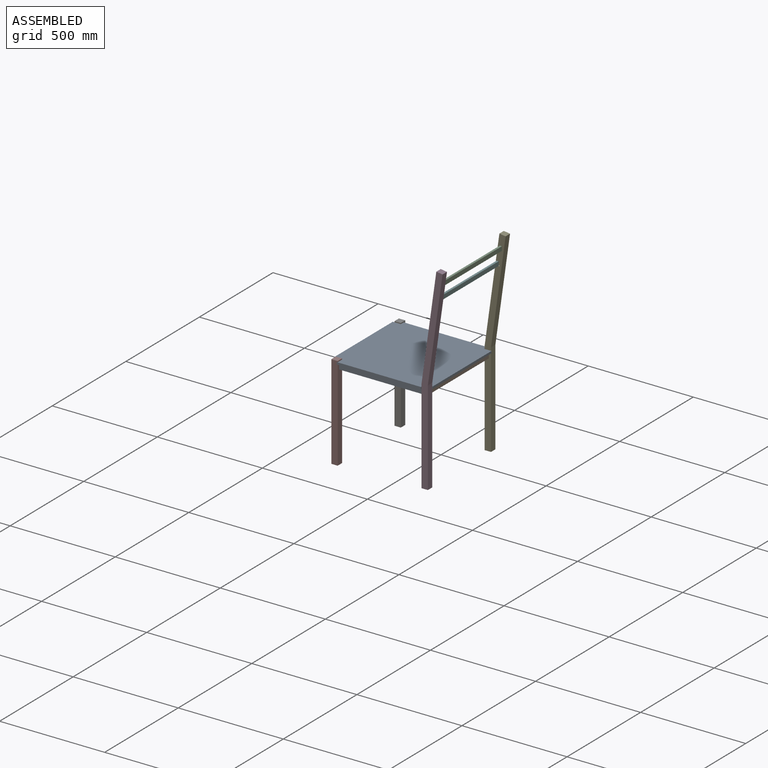
[diagram: assembled view]
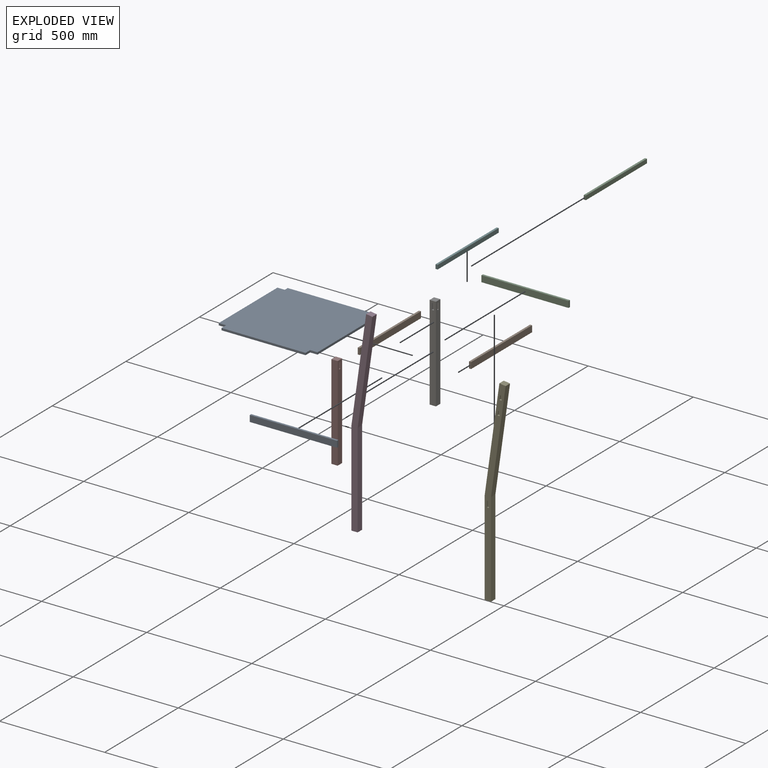
[diagram: exploded view]
GUIDED TOUR — MATED ASSEMBLY (Onshape document 57f553b5744ea710bc582a94, AutoMate assembly 57f553b5744ea710bc582a94_9892157abdbce8a4e0718a77_82fcf1b029c0564d28d1ed83_default)

This assembly has 11 components, labeled P0..P10 below (a component is one placed occurrence of a part; the same part can appear more than once), held together by 10 mates. A mate is a constraint between two components; its type names the relative motion it leaves free:
  FASTENED — locks the two components together rigidly (no relative motion).
Axis/direction vectors are unit vectors and 'through' points are millimeter coordinates, both in the assembly's world frame.

MATES
  1. FASTENED "Fastened 2": P3 <-> P0, direction (-1.000, 0.000, 0.000) through (437.00, -444.00, 425.00) mm
  2. FASTENED "support face et pied droit": P7 <-> P1, direction (0.000, 1.000, 0.000) through (15.00, -437.00, 425.00) mm
  3. FASTENED "Fastened 5": P5 <-> P4, direction (0.000, 1.000, 0.000) through (490.79, -30.00, 829.87) mm
  4. FASTENED "Fastened 3": P8 <-> P3, direction (0.000, -1.000, 0.000) through (444.00, -429.00, 440.00) mm
  5. FASTENED "le support de la face et le pied gauche": P2 <-> P6, direction (-1.000, 0.000, 0.000) through (22.00, -15.00, 425.00) mm
  6. FASTENED "support droit et pied avant": P0 <-> P7, direction (-1.000, 0.000, 0.000) through (22.00, -444.00, 425.00) mm
  7. FASTENED "support droit et pied arriere": P4 <-> P2, direction (-1.000, 0.000, 0.000) through (437.00, -15.00, 425.00) mm
  8. FASTENED "support gauche et pied avant": P6 <-> P1, direction (0.000, -1.000, 0.000) through (15.00, -22.00, 425.00) mm
  9. FASTENED "support arriere et pied droit": P9 <-> P4, direction (0.000, 1.000, 0.000) through (444.00, -22.00, 425.00) mm
  10. FASTENED "Fastened 4": P10 <-> P3, direction (0.000, -1.000, 0.000) through (505.79, -437.00, 898.49) mm

ASSEMBLY ORDER
  1. P7 — the base component [order verified]
  2. P1 [order verified]
  3. P0 [order verified]
  4. P6 [order verified]
  5. P2 [order verified]
  6. P8 [order verified]
  7. P9 [order verified]
  8. P5 [order verified]
  9. P3 [order verified]
  10. P10 [order verified]
  11. P4 [order verified]
(P0, P1, P2, P6 verified with a relaxed clearance tolerance: the source model stores slight part interference there.)
Order-tag legend:
  [order verified] — this step's position reverses a verified removal order: the component was checked to insert without passing through the ones already placed.

Of the 11 components, 6 carry the full construction recipe — the FeatureScript program that regenerates the part's solid from scratch; the rest are supplied as boundary geometry only.
Each toured component is shown spotlighted twice — in the assembled view, then in the exploded view, where a leader line traces a displaced component back to its assembled socket (saturated green if recipe-attached, orange if geometry-only; every other component desaturated gray) — followed by its recipe or geometry summary and the mates that hold it.
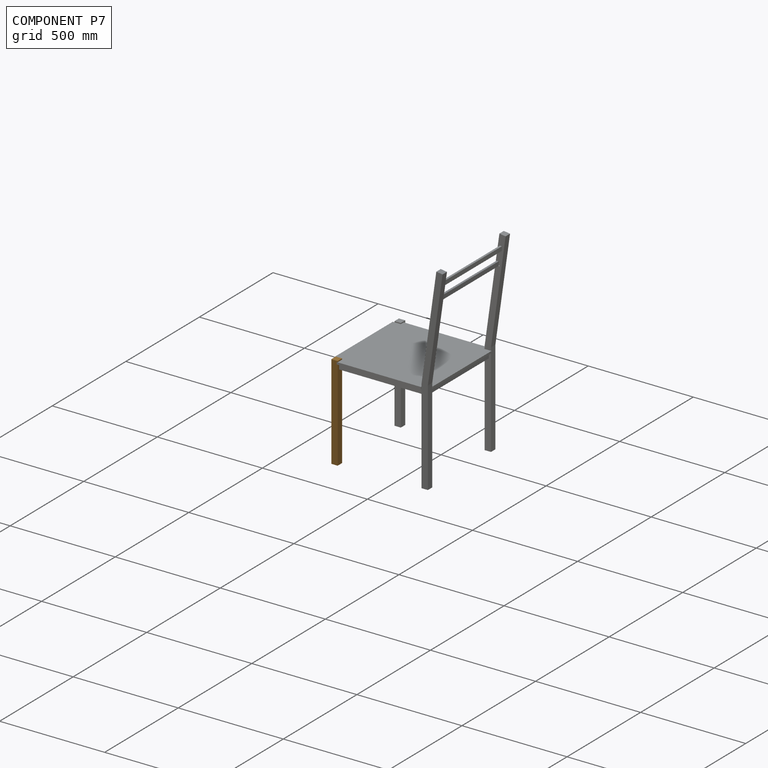
[diagram: component P7 — assembled]
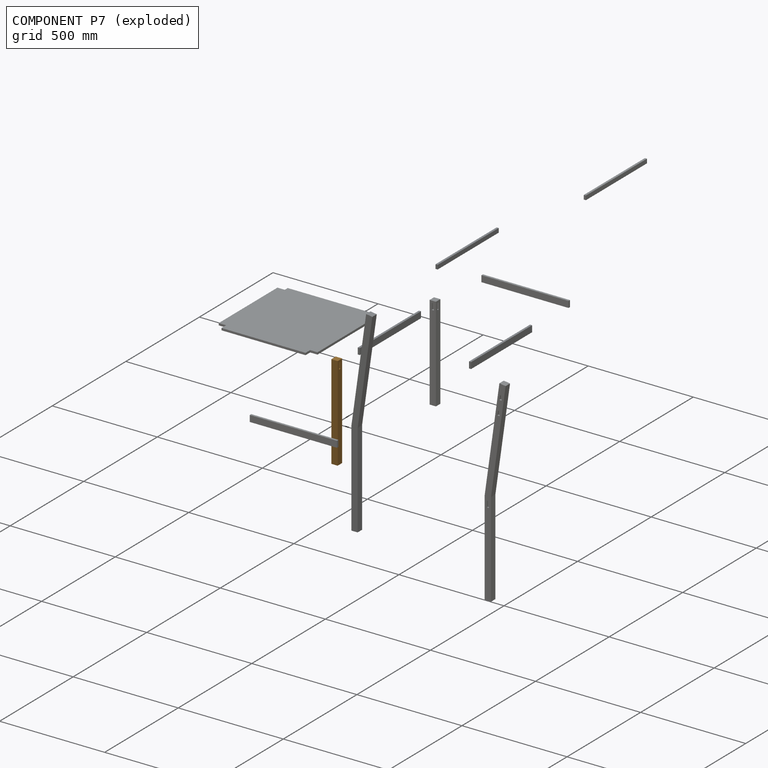
[diagram: component P7 — exploded]
COMPONENT P7 — geometry summary (no construction recipe available for this part):
  bounding box: 450.0 x 30.0 x 30.0 mm
  B-rep topology: 1 solid, 16 faces, 72 edges
  volume: 400200 mm^3 (99% of its bounding box)
Held by: FASTENED mate "support face et pied droit" to P1; FASTENED mate "support droit et pied avant" to P0.
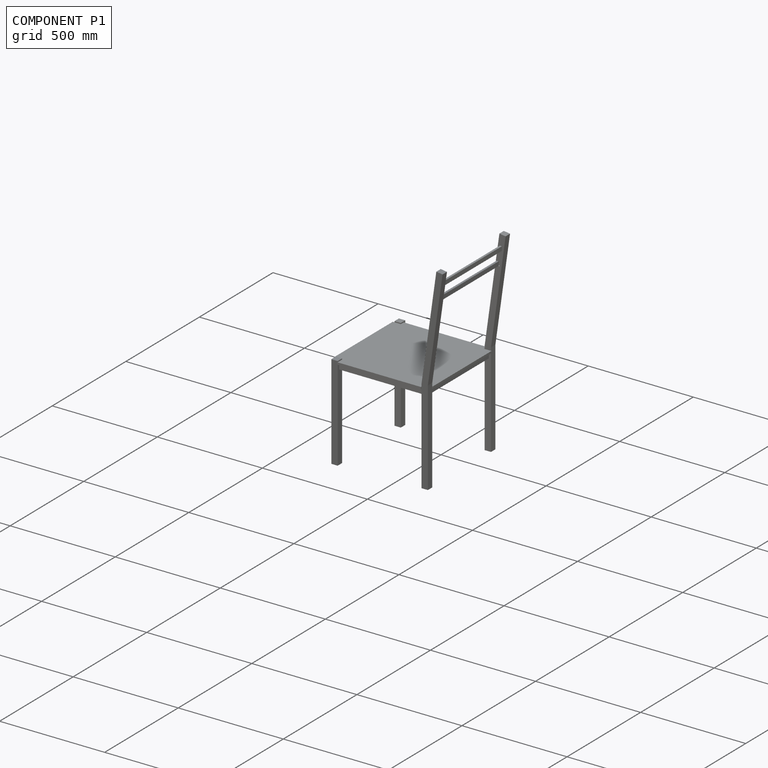
[diagram: component P1 — assembled]
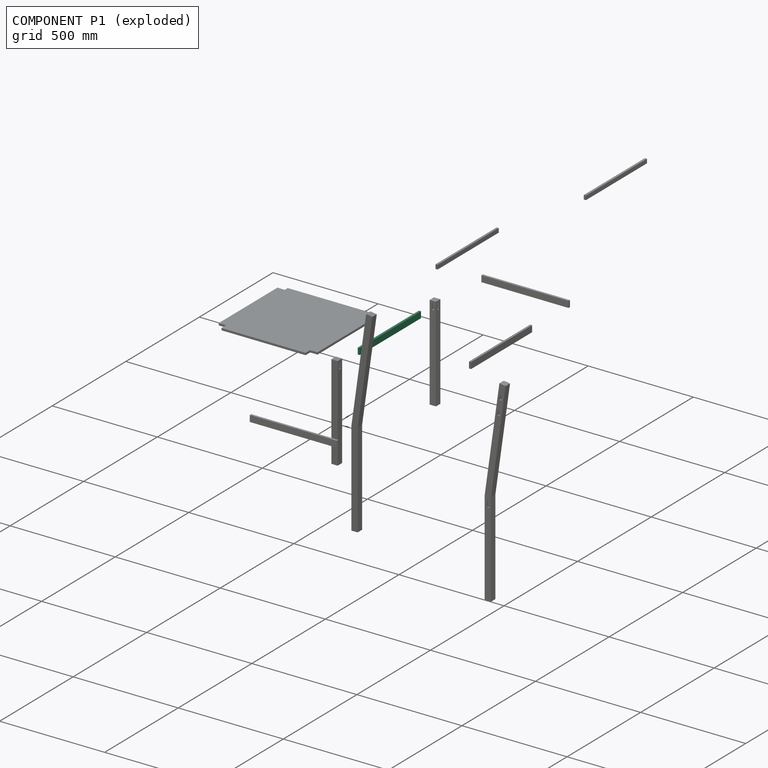
[diagram: component P1 — exploded]
COMPONENT P1 — same part as P0 (CADFS 00283725); its construction recipe is shown at P0.
Held by: FASTENED mate "support face et pied droit" to P7; FASTENED mate "support gauche et pied avant" to P6.
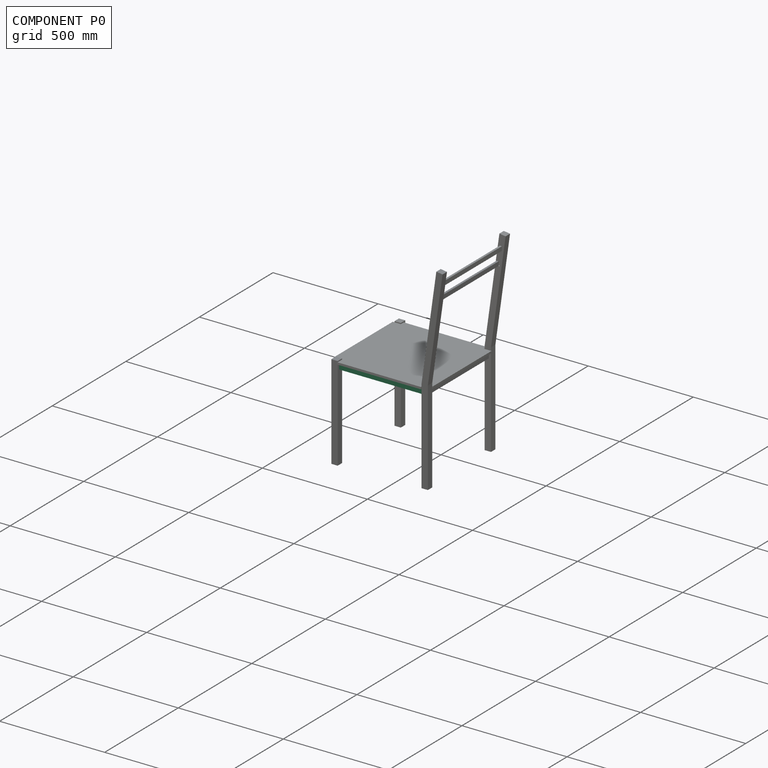
[diagram: component P0 — assembled]
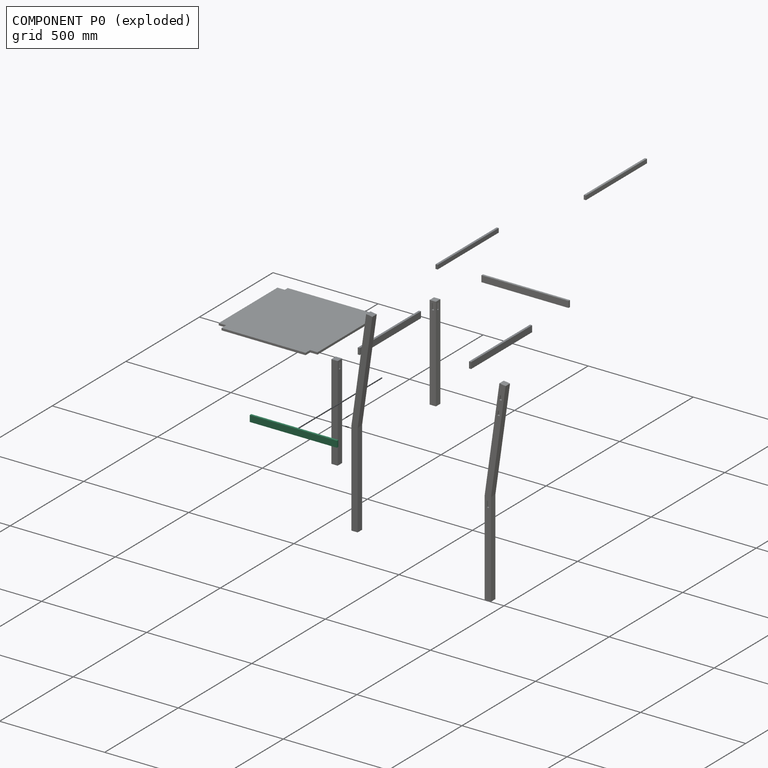
[diagram: component P0 — exploded]
COMPONENT P0 — recipe-attached (CADFS 00283725, mesh-verified: the recipe's output STEP matches this component's geometry to below the mesh-comparison resolution (tessellation chordal tolerance ~0.624 mm)).
Held by: FASTENED mate "Fastened 2" to P3; FASTENED mate "support droit et pied avant" to P7.
Construction recipe (FeatureScript — the CAD program that rebuilds this solid; sketch coordinates are in the units given by the * unit suffixes, e.g. mm):

FeatureScript 1618;
import(path : "onshape/std/geometry.fs", version : "1618.0");
import(path : "onshape/std/common.fs", version : "1618.0");
const mm = millimeter;
const VERTEX = EntityType.VERTEX;
const EDGE = EntityType.EDGE;
const FACE = EntityType.FACE;
const BODY = EntityType.BODY;
function v(x, y){return vector(x, y);}
function OD(order){return orderDisambiguation(order);}
function OSD(set){return originalSetDisambiguation(set);}
function TD(topology){return topologyDisambiguation(topology);}
function TDD(query){return trueDependencyDisambiguation(query);}
function sQuery(a, b, c) {return sketchEntityQuery(a, b, c);}

annotation { "Feature Type Name" : "Feature", "Feature Type Description" : "" }
export const myFeature = defineFeature(function(context is Context, id is Id, definition is map)
    precondition{}
    {
        {
            var Q0;
            Q0=qCreatedBy(makeId("Front.planeOp"),FACE);
            var sketch = newSketch(context, id + "F0", { "sketchPlane" : qUnion([Q0])});
            skLineSegment(sketch, "E0.bottom", {"start": v(0, 0) * mm, "end": v(30, 0) * mm});
            skLineSegment(sketch, "E0.top", {"start": v(0, -10) * mm, "end": v(30, -10) * mm});
            skLineSegment(sketch, "E0.left", {"start": v(0, 0) * mm, "end": v(0, -10) * mm});
            skLineSegment(sketch, "E0.right", {"start": v(30, 0) * mm, "end": v(30, -10) * mm});
            skSolve(sketch);
        }
        {
            var Q0;
            Q0=qSketchRegion(id+"F0",true);
            extrude(context, id + "F1", {"entities" : qUnion([Q0]), "depth" : 415 * mm});
        }
    });
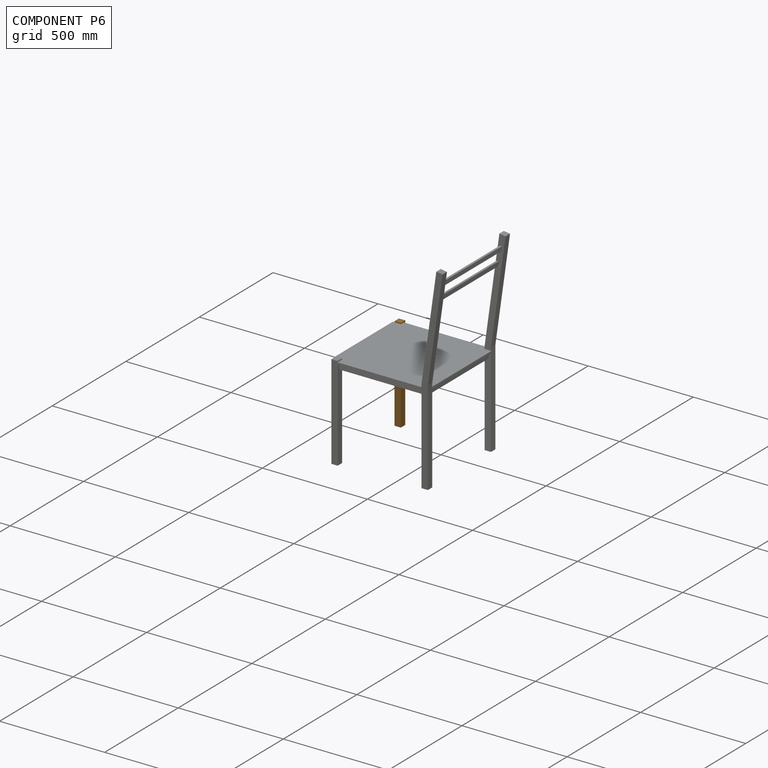
[diagram: component P6 — assembled]
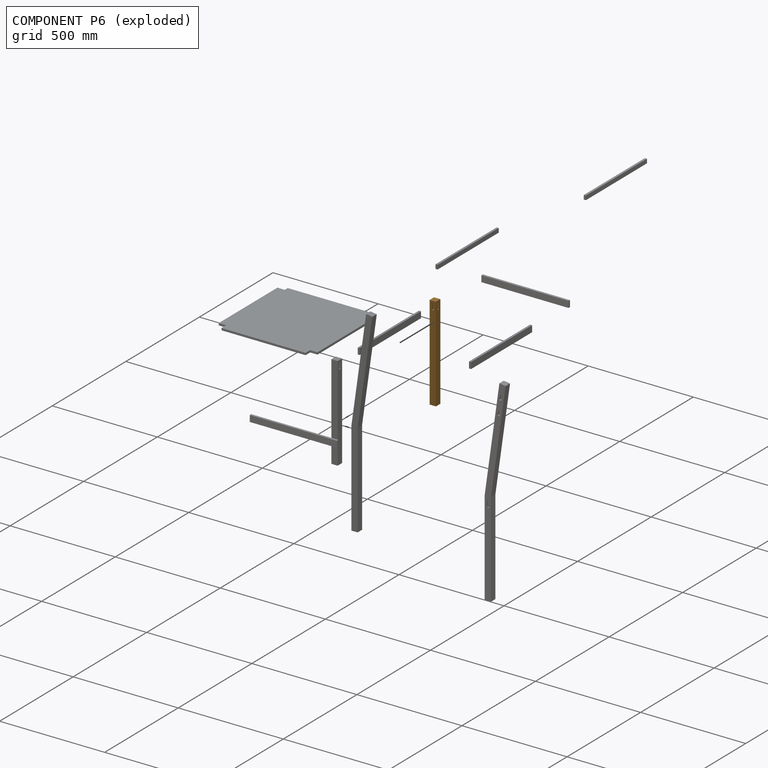
[diagram: component P6 — exploded]
COMPONENT P6 — geometry summary (no construction recipe available for this part):
  bounding box: 450.0 x 30.0 x 30.0 mm
  B-rep topology: 1 solid, 16 faces, 72 edges
  volume: 400200 mm^3 (99% of its bounding box)
Held by: FASTENED mate "le support de la face et le pied gauche" to P2; FASTENED mate "support gauche et pied avant" to P1.
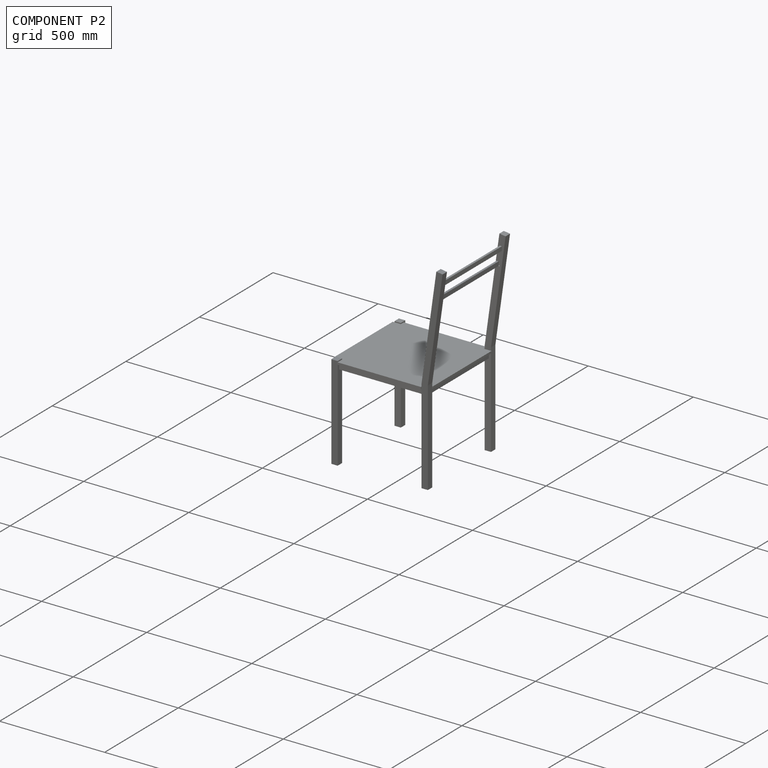
[diagram: component P2 — assembled]
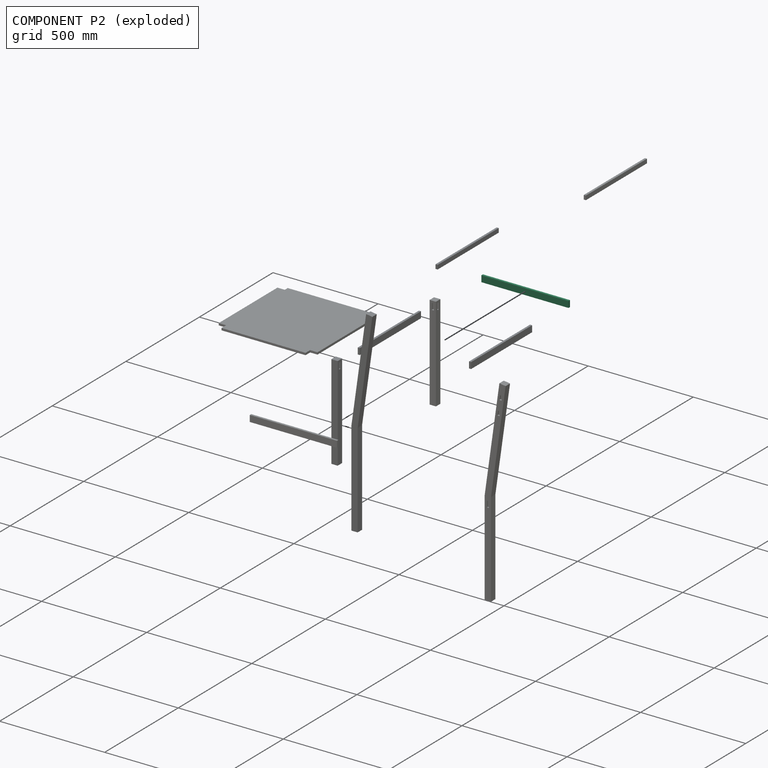
[diagram: component P2 — exploded]
COMPONENT P2 — same part as P0 (CADFS 00283725); its construction recipe is shown at P0.
Held by: FASTENED mate "le support de la face et le pied gauche" to P6; FASTENED mate "support droit et pied arriere" to P4.
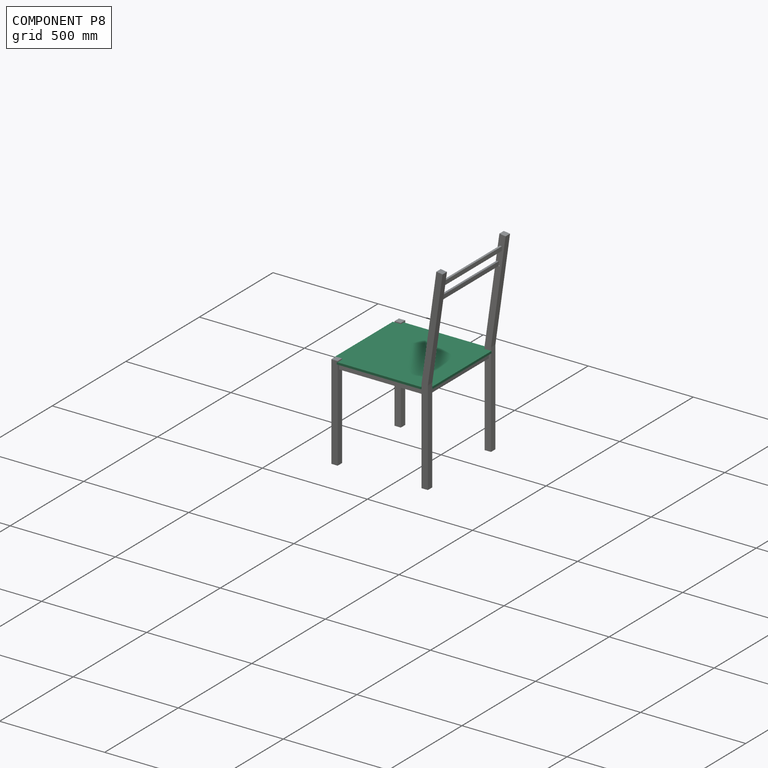
[diagram: component P8 — assembled]
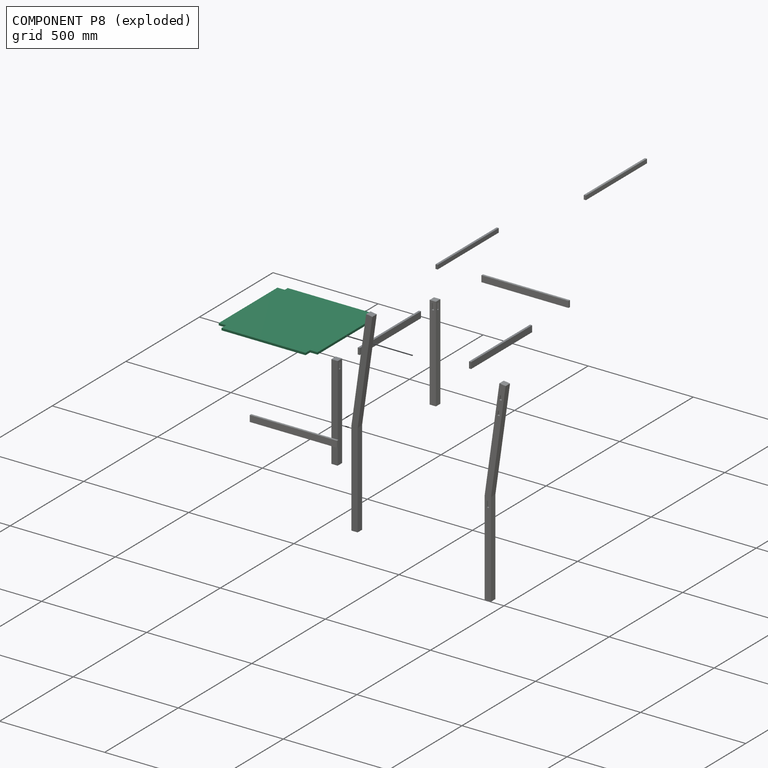
[diagram: component P8 — exploded]
COMPONENT P8 — recipe-attached (CADFS 00285003, mesh-verified: the recipe's output STEP matches this component's geometry to below the mesh-comparison resolution (tessellation chordal tolerance ~0.976 mm)).
Held by: FASTENED mate "Fastened 3" to P3.
Construction recipe (FeatureScript — the CAD program that rebuilds this solid; sketch coordinates are in the units given by the * unit suffixes, e.g. mm):

FeatureScript 1618;
import(path : "onshape/std/geometry.fs", version : "1618.0");
import(path : "onshape/std/common.fs", version : "1618.0");
const mm = millimeter;
const VERTEX = EntityType.VERTEX;
const EDGE = EntityType.EDGE;
const FACE = EntityType.FACE;
const BODY = EntityType.BODY;
function v(x, y){return vector(x, y);}
function OD(order){return orderDisambiguation(order);}
function OSD(set){return originalSetDisambiguation(set);}
function TD(topology){return topologyDisambiguation(topology);}
function TDD(query){return trueDependencyDisambiguation(query);}
function sQuery(a, b, c) {return sketchEntityQuery(a, b, c);}

annotation { "Feature Type Name" : "Feature", "Feature Type Description" : "" }
export const myFeature = defineFeature(function(context is Context, id is Id, definition is map)
    precondition{}
    {
        {
            var Q0;
            Q0=qCreatedBy(makeId("Top.planeOp"),FACE);
            var sketch = newSketch(context, id + "F0", { "sketchPlane" : qUnion([Q0])});
            skLineSegment(sketch, "E0", {"start": v(0, 0) * mm, "end": v(470, 0) * mm});
            skLineSegment(sketch, "E1", {"start": v(470, 0) * mm, "end": v(470, 450) * mm});
            skLineSegment(sketch, "E2", {"start": v(470, 450) * mm, "end": v(0, 450) * mm});
            skLineSegment(sketch, "E3", {"start": v(0, 450) * mm, "end": v(0, 0) * mm});
            skSolve(sketch);
        }
        {
            var Q0;
            Q0=qSketchRegion(id+"F0",true);
            extrude(context, id + "F1", {"entities" : qUnion([Q0]), "depth" : 10 * mm});
        }
        {
            var Q0;
            Q0=makeQuery(id+"F1.opExtrude","CAP_FACE",FACE,{"disambiguationData":[OSD([sQuery(id+"F0.wireOp",EDGE,"E0"),sQuery(id+"F0.wireOp",EDGE,"E1"),sQuery(id+"F0.wireOp",EDGE,"E2"),sQuery(id+"F0.wireOp",EDGE,"E3")])],"isStart":false});
            var sketch = newSketch(context, id + "F2", { "sketchPlane" : qUnion([Q0])});
            skLineSegment(sketch, "E4.bottom", {"start": v(35, 450) * mm, "end": v(0, 450) * mm});
            skLineSegment(sketch, "E4.top", {"start": v(35, 430) * mm, "end": v(0, 430) * mm});
            skLineSegment(sketch, "E4.left", {"start": v(35, 450) * mm, "end": v(35, 430) * mm});
            skLineSegment(sketch, "E4.right", {"start": v(0, 450) * mm, "end": v(0, 430) * mm});
            skLineSegment(sketch, "E5.bottom", {"start": v(0, 0) * mm, "end": v(35, 0) * mm});
            skLineSegment(sketch, "E5.top", {"start": v(0, 31) * mm, "end": v(35, 31) * mm});
            skLineSegment(sketch, "E5.left", {"start": v(0, 0) * mm, "end": v(0, 31) * mm});
            skLineSegment(sketch, "E5.right", {"start": v(35, 0) * mm, "end": v(35, 31) * mm});
            skLineSegment(sketch, "E6", {"start": v(235, 450) * mm, "end": v(235, 0) * mm, "construction": true});
            skLineSegment(sketch, "E7.MirrorCS", {"start": v(470, 450) * mm, "end": v(470, 430) * mm});
            skLineSegment(sketch, "E8.MirrorCS", {"start": v(435, 450) * mm, "end": v(470, 450) * mm});
            skLineSegment(sketch, "E9.MirrorCS", {"start": v(435, 430) * mm, "end": v(470, 430) * mm});
            skLineSegment(sketch, "E10.MirrorCS", {"start": v(435, 450) * mm, "end": v(435, 430) * mm});
            skLineSegment(sketch, "E11.MirrorCS", {"start": v(470, 31) * mm, "end": v(435, 31) * mm});
            skLineSegment(sketch, "E12.MirrorCS", {"start": v(470, 0) * mm, "end": v(435, 0) * mm});
            skLineSegment(sketch, "E13.MirrorCS", {"start": v(435, 0) * mm, "end": v(435, 31) * mm});
            skLineSegment(sketch, "E14.MirrorCS", {"start": v(470, 0) * mm, "end": v(470, 31) * mm});
            skSolve(sketch);
        }
        {
            var Q0;
            Q0=qSketchRegion(id+"F2",true);
            extrude(context, id + "F3", {"entities" : qUnion([Q0]), "operationType" : NewBodyOperationType.REMOVE, "endBound" : BoundingType.THROUGH_ALL, "oppositeDirection" : true, "depth" : 25 * mm});
        }
    });
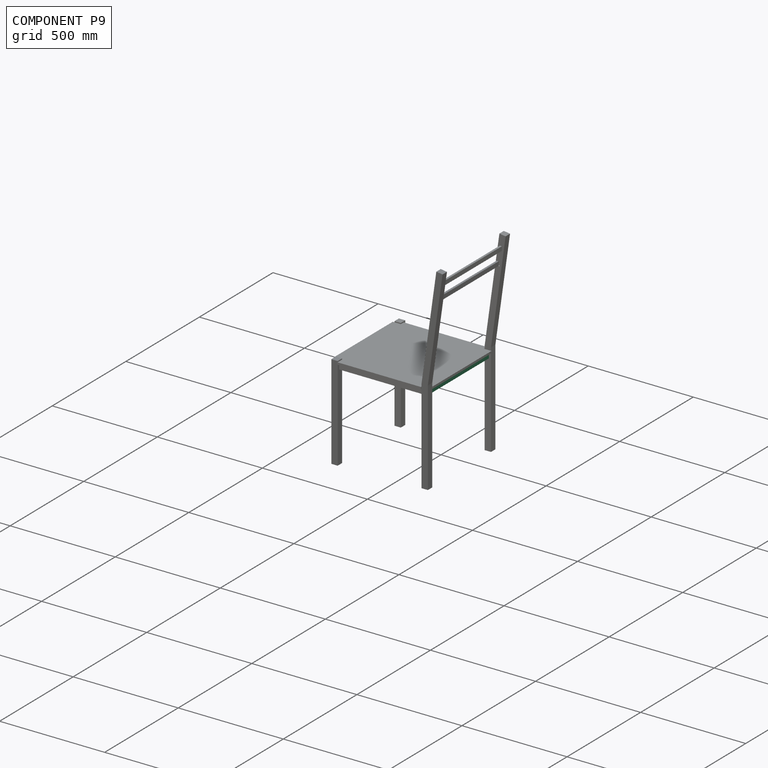
[diagram: component P9 — assembled]
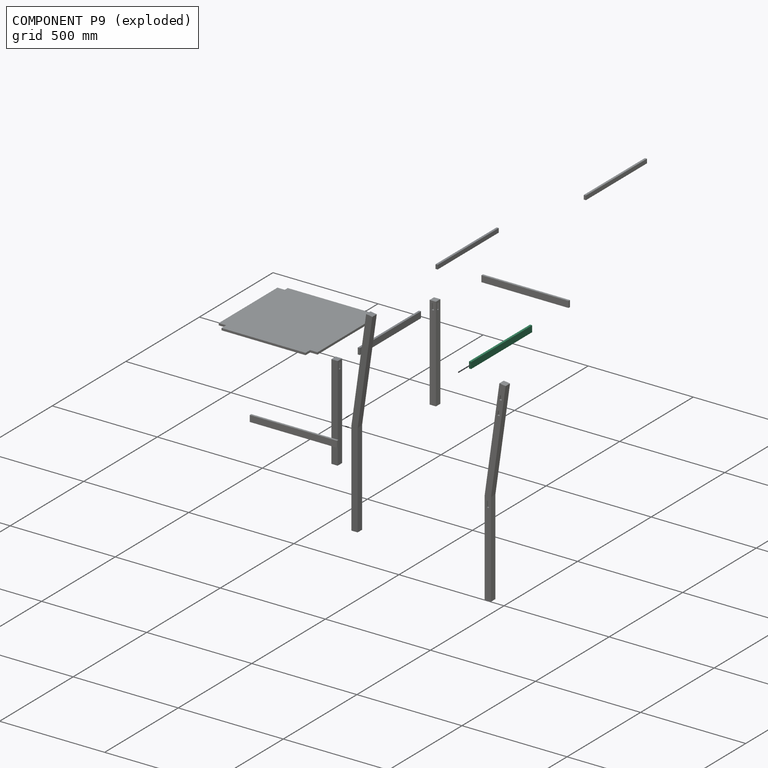
[diagram: component P9 — exploded]
COMPONENT P9 — same part as P0 (CADFS 00283725); its construction recipe is shown at P0.
Held by: FASTENED mate "support arriere et pied droit" to P4.
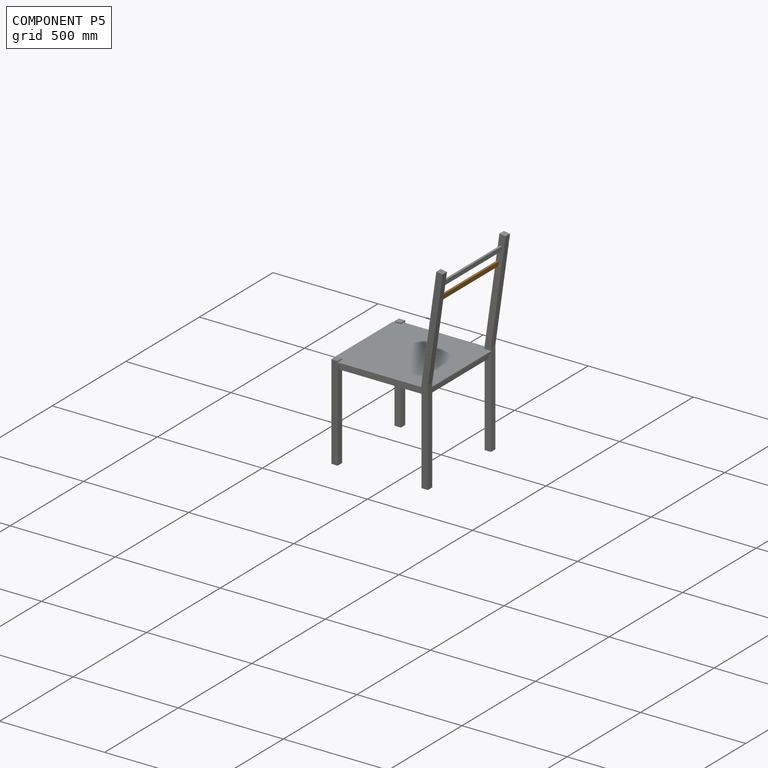
[diagram: component P5 — assembled]
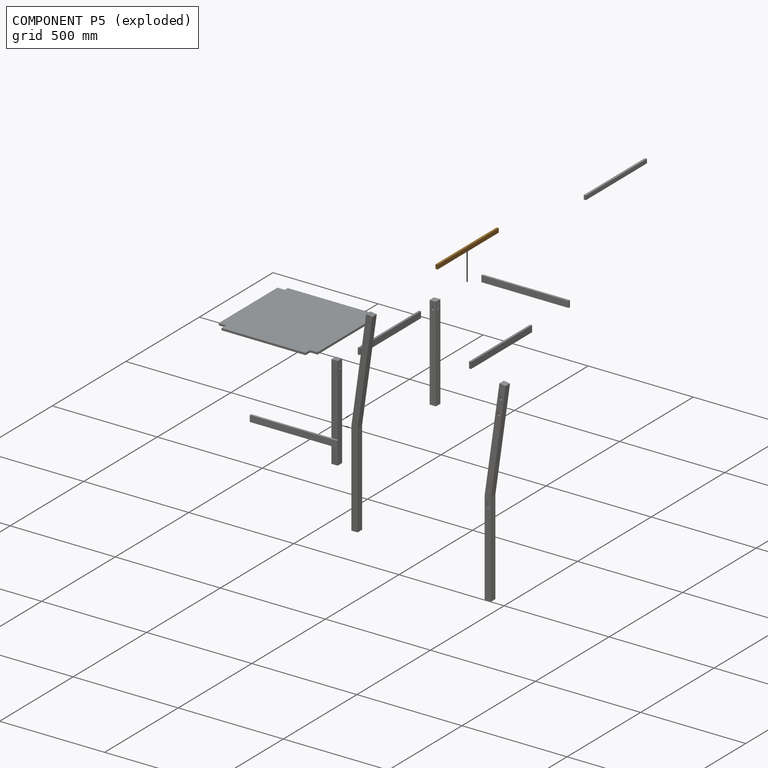
[diagram: component P5 — exploded]
COMPONENT P5 — geometry summary (no construction recipe available for this part):
  bounding box: 415.0 x 20.0 x 10.0 mm
  B-rep topology: 1 solid, 6 faces, 24 edges
  volume: 83000 mm^3 (100% of its bounding box)
  symmetry: 2-fold rotationally symmetric about the x axis; 2-fold rotationally symmetric about the y axis; 2-fold rotationally symmetric about the z axis; mirror-symmetric across its x mid-plane, y mid-plane, z mid-plane
Held by: FASTENED mate "Fastened 5" to P4.
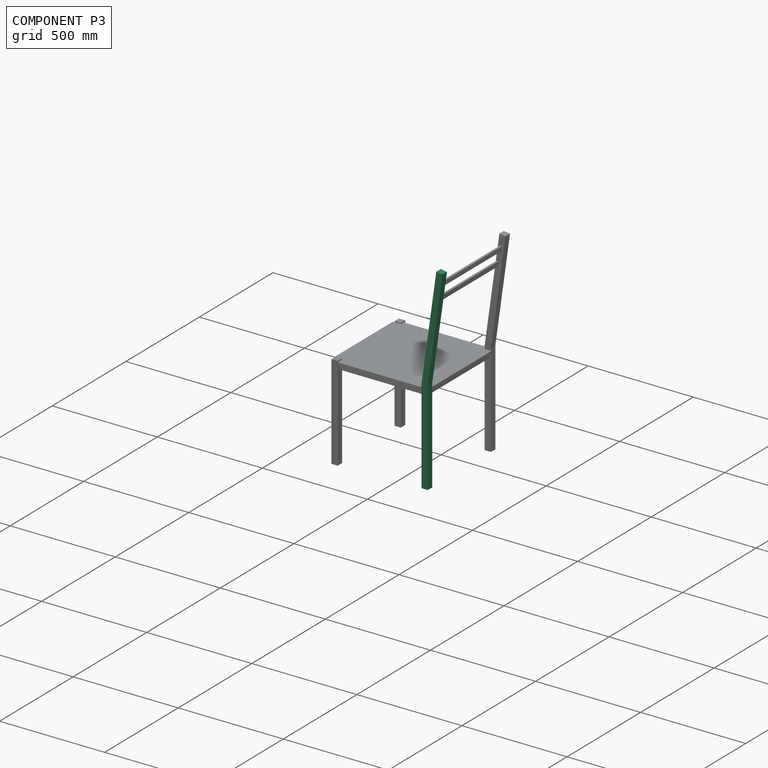
[diagram: component P3 — assembled]
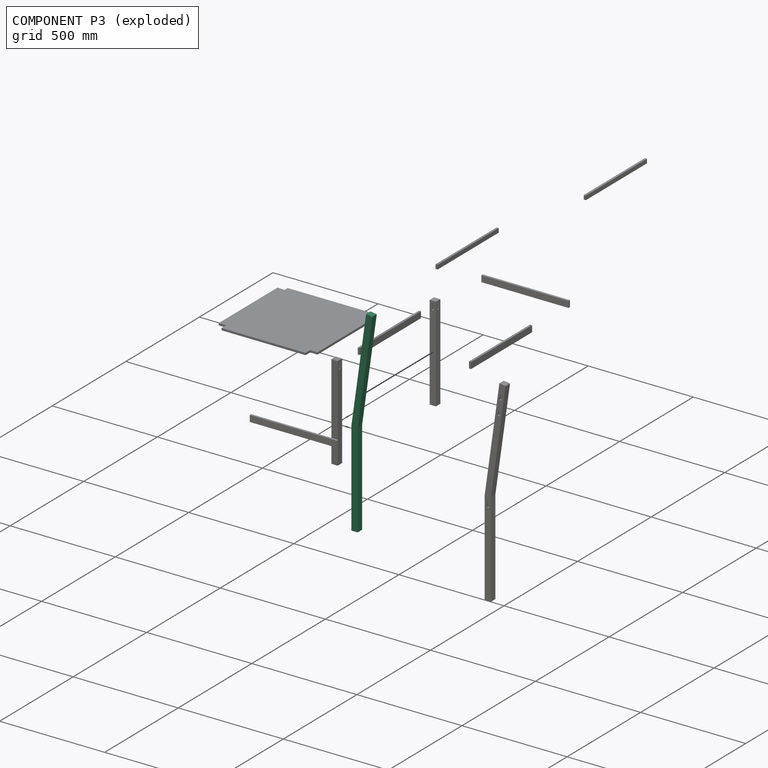
[diagram: component P3 — exploded]
COMPONENT P3 — recipe-attached (CADFS 00275681, mesh-verified: the recipe's output STEP matches this component's geometry to below the mesh-comparison resolution (tessellation chordal tolerance ~1.43 mm)).
Held by: FASTENED mate "Fastened 2" to P0; FASTENED mate "Fastened 3" to P8; FASTENED mate "Fastened 4" to P10.
Construction recipe (FeatureScript — the CAD program that rebuilds this solid; sketch coordinates are in the units given by the * unit suffixes, e.g. mm):

FeatureScript 1511;
import(path : "onshape/std/geometry.fs", version : "1511.0");
import(path : "onshape/std/common.fs", version : "1511.0");
const mm = millimeter;
const VERTEX = EntityType.VERTEX;
const EDGE = EntityType.EDGE;
const FACE = EntityType.FACE;
const BODY = EntityType.BODY;
function v(x, y){return vector(x, y);}
function OD(order){return orderDisambiguation(order);}
function OSD(set){return originalSetDisambiguation(set);}
function TD(topology){return topologyDisambiguation(topology);}
function TDD(query){return trueDependencyDisambiguation(query);}
function sQuery(a, b, c) {return sketchEntityQuery(a, b, c);}

annotation { "Feature Type Name" : "Feature", "Feature Type Description" : "" }
export const myFeature = defineFeature(function(context is Context, id is Id, definition is map)
    precondition{}
    {
        {
            var Q0;
            Q0=qCreatedBy(makeId("Front.planeOp"),FACE);
            var sketch = newSketch(context, id + "F0", { "sketchPlane" : qUnion([Q0])});
            skLineSegment(sketch, "E0", {"start": v(0, 0) * mm, "end": v(0, -450) * mm});
            skLineSegment(sketch, "E1", {"start": v(0, -450) * mm, "end": v(30, -450) * mm});
            skLineSegment(sketch, "E2", {"start": v(30, -450) * mm, "end": v(30, 0) * mm});
            skLineSegment(sketch, "E3", {"start": v(30, 0) * mm, "end": v(100, 495.8) * mm});
            skLineSegment(sketch, "E4", {"start": v(100, 495.8) * mm, "end": v(70.3, 500) * mm});
            skLineSegment(sketch, "E5", {"start": v(70.3, 500) * mm, "end": v(0, 0) * mm});
            skSolve(sketch);
        }
        {
            var Q0;
            Q0=qSketchRegion(id+"F0",true);
            extrude(context, id + "F1", {"entities" : qUnion([Q0]), "depth" : 30 * mm});
        }
        {
            var Q0;
            Q0=makeQuery(id+"F1.opExtrude","CAP_FACE",FACE,{"disambiguationData":[OSD([sQuery(id+"F0.wireOp",EDGE,"E0"),sQuery(id+"F0.wireOp",EDGE,"E1"),sQuery(id+"F0.wireOp",EDGE,"E2"),sQuery(id+"F0.wireOp",EDGE,"E3"),sQuery(id+"F0.wireOp",EDGE,"E4"),sQuery(id+"F0.wireOp",EDGE,"E5")])],"isStart":true});
            var sketch = newSketch(context, id + "F2", { "sketchPlane" : qUnion([Q0])});
            skLineSegment(sketch, "E6.bottom", {"start": v(-83.14, 447.7) * mm, "end": v(-73.23, 449.09) * mm});
            skLineSegment(sketch, "E6.top", {"start": v(-80.35, 427.89) * mm, "end": v(-70.45, 429.28) * mm});
            skLineSegment(sketch, "E6.left", {"start": v(-83.14, 447.7) * mm, "end": v(-80.35, 427.89) * mm});
            skLineSegment(sketch, "E6.right", {"start": v(-73.23, 449.09) * mm, "end": v(-70.45, 429.28) * mm});
            skLineSegment(sketch, "E7.bottom", {"start": v(-73.4, 378.38) * mm, "end": v(-63.49, 379.77) * mm});
            skLineSegment(sketch, "E7.top", {"start": v(-70.6, 358.57) * mm, "end": v(-60.7, 359.96) * mm});
            skLineSegment(sketch, "E7.left", {"start": v(-73.4, 378.38) * mm, "end": v(-70.6, 358.57) * mm});
            skLineSegment(sketch, "E7.right", {"start": v(-63.49, 379.77) * mm, "end": v(-60.7, 359.96) * mm});
            skSolve(sketch);
        }
        {
            var Q0;
            Q0=qSketchRegion(id+"F2",true);
            extrude(context, id + "F3", {"entities" : qUnion([Q0]), "operationType" : NewBodyOperationType.REMOVE, "oppositeDirection" : true, "depth" : 8 * mm});
        }
        {
            var Q0;
            Q0=makeQuery(id+"F1.opExtrude","CAP_FACE",FACE,{"disambiguationData":[OSD([sQuery(id+"F0.wireOp",EDGE,"E0"),sQuery(id+"F0.wireOp",EDGE,"E1"),sQuery(id+"F0.wireOp",EDGE,"E2"),sQuery(id+"F0.wireOp",EDGE,"E3"),sQuery(id+"F0.wireOp",EDGE,"E4"),sQuery(id+"F0.wireOp",EDGE,"E5")])],"isStart":true});
            var sketch = newSketch(context, id + "F4", { "sketchPlane" : qUnion([Q0])});
            skLineSegment(sketch, "E8.bottom", {"start": v(-20, -20) * mm, "end": v(-10, -20) * mm});
            skLineSegment(sketch, "E8.top", {"start": v(-20, -50) * mm, "end": v(-10, -50) * mm});
            skLineSegment(sketch, "E8.left", {"start": v(-20, -20) * mm, "end": v(-20, -50) * mm});
            skLineSegment(sketch, "E8.right", {"start": v(-10, -20) * mm, "end": v(-10, -50) * mm});
            skSolve(sketch);
        }
        {
            var Q0;
            Q0=qSketchRegion(id+"F4",true);
            extrude(context, id + "F5", {"entities" : qUnion([Q0]), "operationType" : NewBodyOperationType.REMOVE, "oppositeDirection" : true, "depth" : 8 * mm});
        }
        {
            var Q0;
            Q0=makeQuery(id+"F1.opExtrude","SWEPT_FACE",FACE,{"disambiguationData":[OSD([sQuery(id+"F0.wireOp",EDGE,"E0")])]});
            var sketch = newSketch(context, id + "F6", { "sketchPlane" : qUnion([Q0])});
            skLineSegment(sketch, "E9.bottom", {"start": v(10, -20) * mm, "end": v(20, -20) * mm});
            skLineSegment(sketch, "E9.top", {"start": v(10, -50) * mm, "end": v(20, -50) * mm});
            skLineSegment(sketch, "E9.left", {"start": v(10, -20) * mm, "end": v(10, -50) * mm});
            skLineSegment(sketch, "E9.right", {"start": v(20, -20) * mm, "end": v(20, -50) * mm});
            skSolve(sketch);
        }
        {
            var Q0;
            Q0=qSketchRegion(id+"F6",true);
            extrude(context, id + "F7", {"entities" : qUnion([Q0]), "operationType" : NewBodyOperationType.REMOVE, "oppositeDirection" : true, "depth" : 8 * mm});
        }
    });
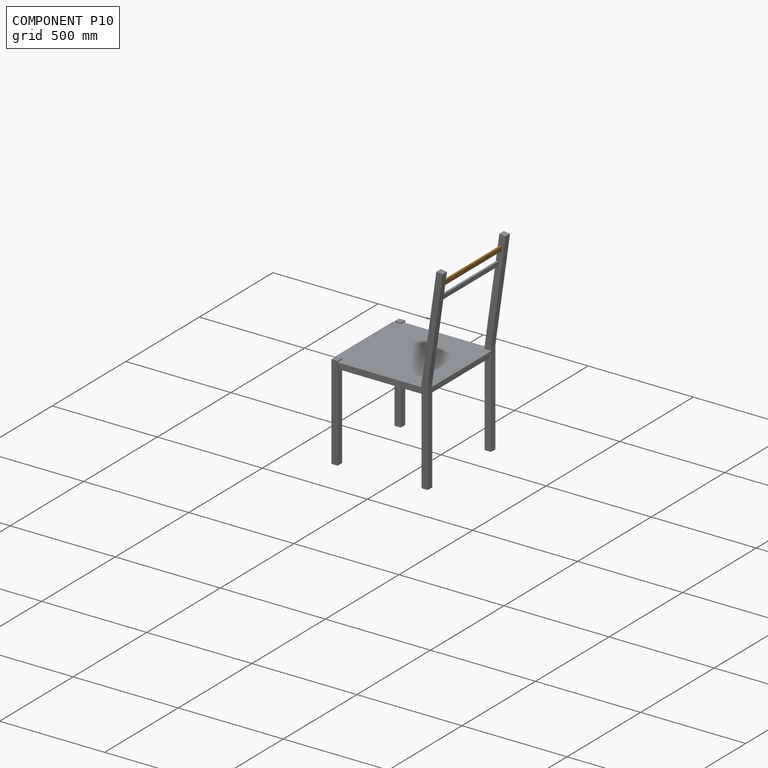
[diagram: component P10 — assembled]
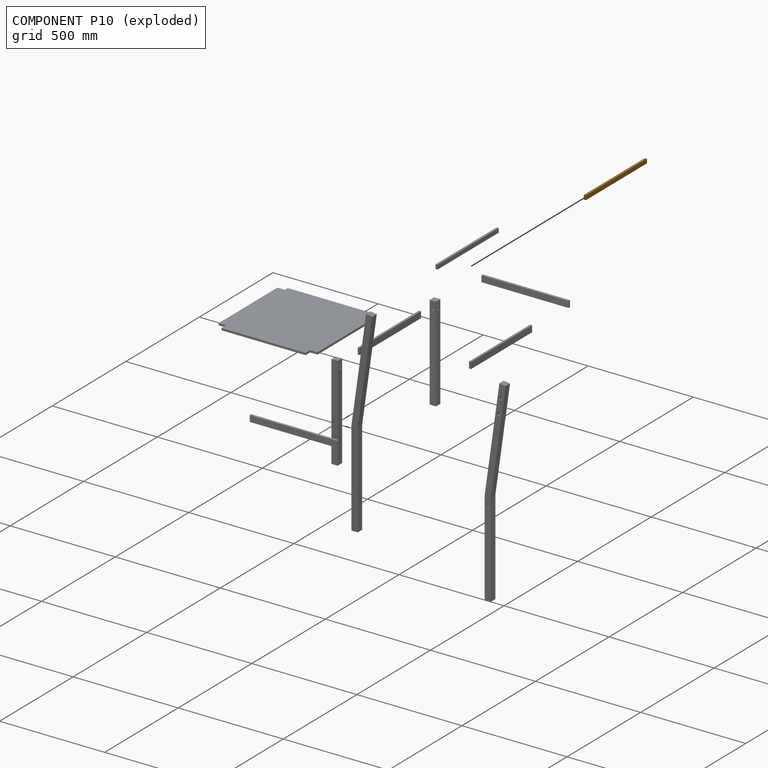
[diagram: component P10 — exploded]
COMPONENT P10 — geometry summary (no construction recipe available for this part):
  bounding box: 415.0 x 20.0 x 10.0 mm
  B-rep topology: 1 solid, 6 faces, 24 edges
  volume: 83000 mm^3 (100% of its bounding box)
  symmetry: 2-fold rotationally symmetric about the x axis; 2-fold rotationally symmetric about the y axis; 2-fold rotationally symmetric about the z axis; mirror-symmetric across its x mid-plane, y mid-plane, z mid-plane
Held by: FASTENED mate "Fastened 4" to P3.
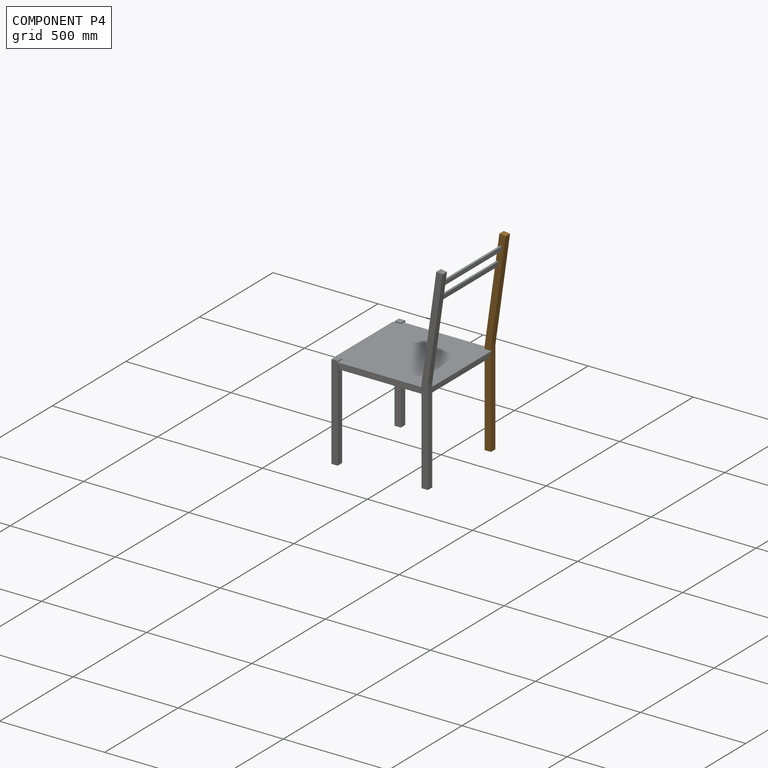
[diagram: component P4 — assembled]
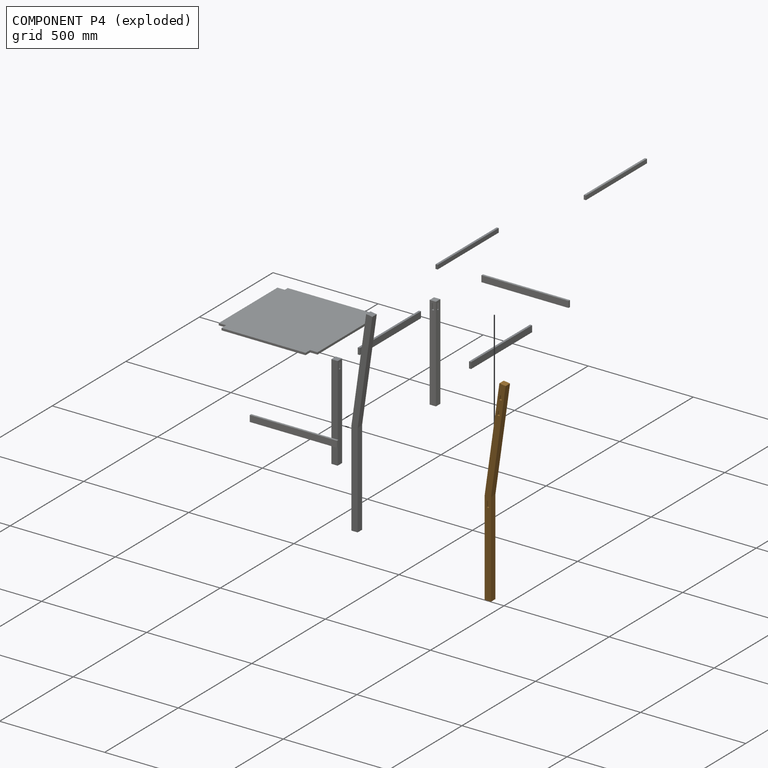
[diagram: component P4 — exploded]
COMPONENT P4 — geometry summary (no construction recipe available for this part):
  bounding box: 950.0 x 99.7 x 30.0 mm
  B-rep topology: 1 solid, 28 faces, 132 edges
  volume: 847314 mm^3 (30% of its bounding box)
Held by: FASTENED mate "Fastened 5" to P5; FASTENED mate "support droit et pied arriere" to P2; FASTENED mate "support arriere et pied droit" to P9.
PROVENANCE & LICENSES
Assembly (occurrences, transforms, mates, per-part STEP geometry): AutoMate dataset, Zenodo record 7776208, CC0.
Construction recipes: CADFS (HuggingFace VladPyatov/CADFS, CC-BY-4.0, layered over the ABC dataset), FeatureScript reconstruction programs keyed by ABC model id.
Join: ABC meta listings map ABC model id -> Onshape documentId; within a shared document, parts are matched by geometric signature (bounding-box dims + volume at 0.1% relative tolerance, exact B-rep face/solid counts).
Verification: 6 of this assembly's 11 components carry a recipe attachment, and every attachment is mesh-verified: the CADFS STEP and the AutoMate member STEP were compared as meshes in their shared local frame (symmetric sampled-point-to-mesh distance); worst across the 6 attachments: below the mesh-comparison resolution (tessellation chordal tolerance ~1.43 mm) on a 956 mm part.
Renders: orthographic iso camera (az 35 / el 25); the floor grid conveys scale (grid pitch printed in each image; no ruler). In the exploded view each component is displaced by its stored offset vector: the offsets alone carry the explosion direction (mate normal/axis signs are not orientation cues and do not encode it), and separation distances are assigned per mate-chain, not proportionally to assembly-order depth.
